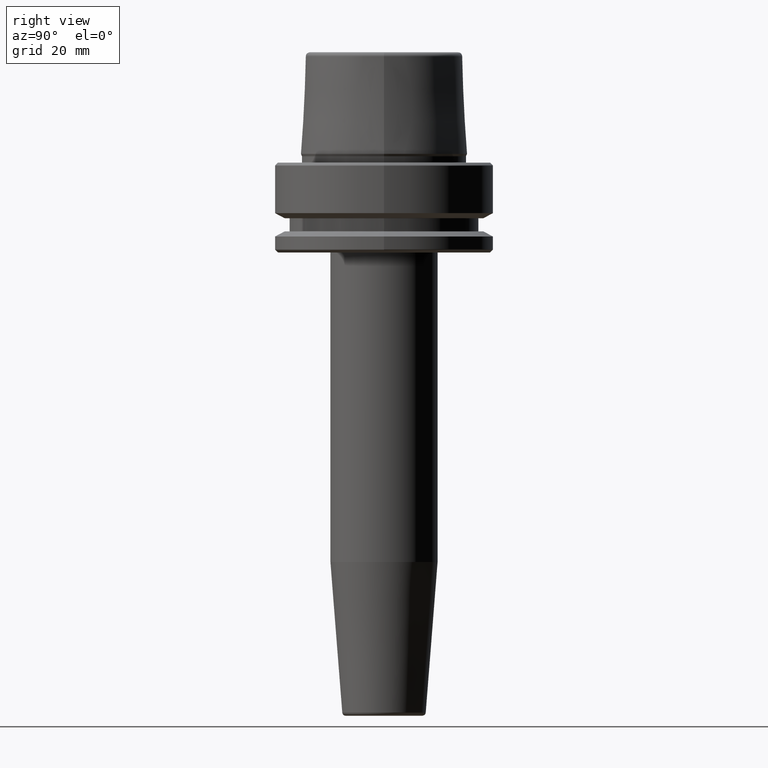
[diagram: clean part render]
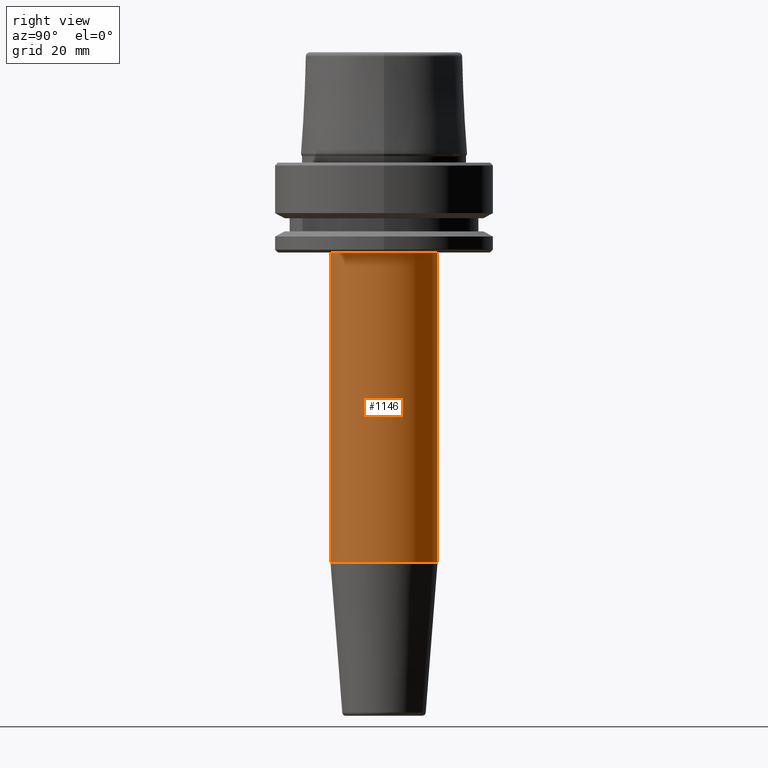
[diagram: same view with one face highlighted and labeled with its STEP entity id]
A machine part, right view. The second image highlights one B-rep face of the part: STEP entity #1146.
In plain terms, the highlighted cylindrical surface (partial cylindrical patch) has radius 15.5 mm, axis along (-0, 0, -1).
Its self-contained STEP definition (entity closure, byte-faithful):
#5 = CARTESIAN_POINT ( 'NONE',  ( 1.898202538678396400E-015, -15.49999999999998400, -160.0000000000000000 ) ) ;
#29 = AXIS2_PLACEMENT_3D ( 'NONE', #1005, #817, #635 ) ;
#32 = DIRECTION ( 'NONE',  ( -0.0000000000000000000, 3.655662087007025400E-017, -1.000000000000000000 ) ) ;
#34 = DIRECTION ( 'NONE',  ( -0.0000000000000000000, 3.655662087007025400E-017, -1.000000000000000000 ) ) ;
#143 = ORIENTED_EDGE ( 'NONE', *, *, #1106, .F. ) ;
#176 = CIRCLE ( 'NONE', #441, 15.49999999999998900 ) ;
#184 = CARTESIAN_POINT ( 'NONE',  ( 1.898202538678395600E-015, 15.49999999999998800, -115.5282834233845800 ) ) ;
#235 = EDGE_CURVE ( 'NONE', #391, #497, #765, .T. ) ;
#249 = CARTESIAN_POINT ( 'NONE',  ( 0.0000000000000000000, 15.49999999999998900, -25.99999999999999600 ) ) ;
#376 = CARTESIAN_POINT ( 'NONE',  ( 0.0000000000000000000, 0.0000000000000000000, -25.99999999999999600 ) ) ;
#383 = EDGE_LOOP ( 'NONE', ( #678, #455, #143, #688 ) ) ;
#391 = VERTEX_POINT ( 'NONE', #249 ) ;
#403 = VERTEX_POINT ( 'NONE', #982 ) ;
#441 = AXIS2_PLACEMENT_3D ( 'NONE', #376, #1040, #478 ) ;
#455 = ORIENTED_EDGE ( 'NONE', *, *, #944, .T. ) ;
#478 = DIRECTION ( 'NONE',  ( 1.000000000000000000, 0.0000000000000000000, 0.0000000000000000000 ) ) ;
#497 = VERTEX_POINT ( 'NONE', #184 ) ;
#502 = CYLINDRICAL_SURFACE ( 'NONE', #29, 15.49999999999998900 ) ;
#516 = VECTOR ( 'NONE', #34, 1000.000000000000000 ) ;
#535 = FACE_OUTER_BOUND ( 'NONE', #383, .T. ) ;
#610 = DIRECTION ( 'NONE',  ( -0.0000000000000000000, 3.655662087007025400E-017, -1.000000000000000000 ) ) ;
#627 = CARTESIAN_POINT ( 'NONE',  ( 0.0000000000000000000, 3.272851514256865500E-015, -115.5282834233845800 ) ) ;
#635 = DIRECTION ( 'NONE',  ( 0.0000000000000000000, 1.000000000000000000, 0.0000000000000000000 ) ) ;
#678 = ORIENTED_EDGE ( 'NONE', *, *, #1255, .T. ) ;
#687 = VECTOR ( 'NONE', #610, 1000.000000000000000 ) ;
#688 = ORIENTED_EDGE ( 'NONE', *, *, #235, .F. ) ;
#731 = DIRECTION ( 'NONE',  ( 0.0000000000000000000, 1.000000000000000000, 0.0000000000000000000 ) ) ;
#755 = VERTEX_POINT ( 'NONE', #1059 ) ;
#765 = LINE ( 'NONE', #914, #516 ) ;
#817 = DIRECTION ( 'NONE',  ( -0.0000000000000000000, 3.655662087007025400E-017, -1.000000000000000000 ) ) ;
#914 = CARTESIAN_POINT ( 'NONE',  ( 0.0000000000000000000, 15.49999999999999500, -160.0000000000000000 ) ) ;
#940 = LINE ( 'NONE', #5, #687 ) ;
#944 = EDGE_CURVE ( 'NONE', #403, #755, #940, .T. ) ;
#969 = AXIS2_PLACEMENT_3D ( 'NONE', #627, #32, #731 ) ;
#982 = CARTESIAN_POINT ( 'NONE',  ( 1.898202538678396800E-015, -15.49999999999999100, -25.99999999999999600 ) ) ;
#1005 = CARTESIAN_POINT ( 'NONE',  ( 0.0000000000000000000, 4.898587196589414600E-015, -160.0000000000000000 ) ) ;
#1033 = CIRCLE ( 'NONE', #969, 15.49999999999998400 ) ;
#1040 = DIRECTION ( 'NONE',  ( 0.0000000000000000000, 0.0000000000000000000, -1.000000000000000000 ) ) ;
#1059 = CARTESIAN_POINT ( 'NONE',  ( 0.0000000000000000000, -15.49999999999998000, -115.5282834233845800 ) ) ;
#1106 = EDGE_CURVE ( 'NONE', #497, #755, #1033, .T. ) ;
#1146 = ADVANCED_FACE ( 'NONE', ( #535 ), #502, .T. ) ;
#1255 = EDGE_CURVE ( 'NONE', #391, #403, #176, .T. ) ;